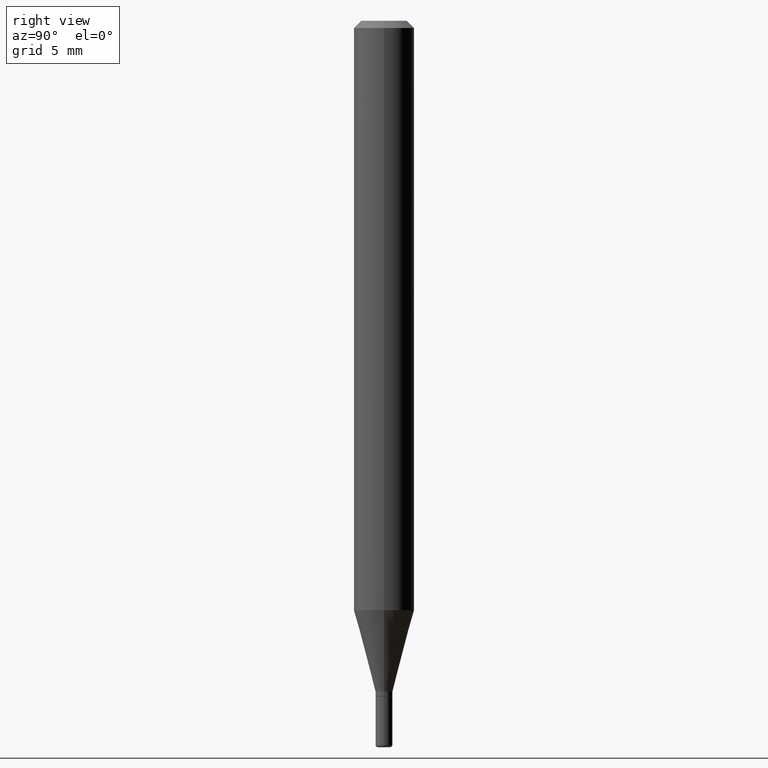
[diagram: clean part render]
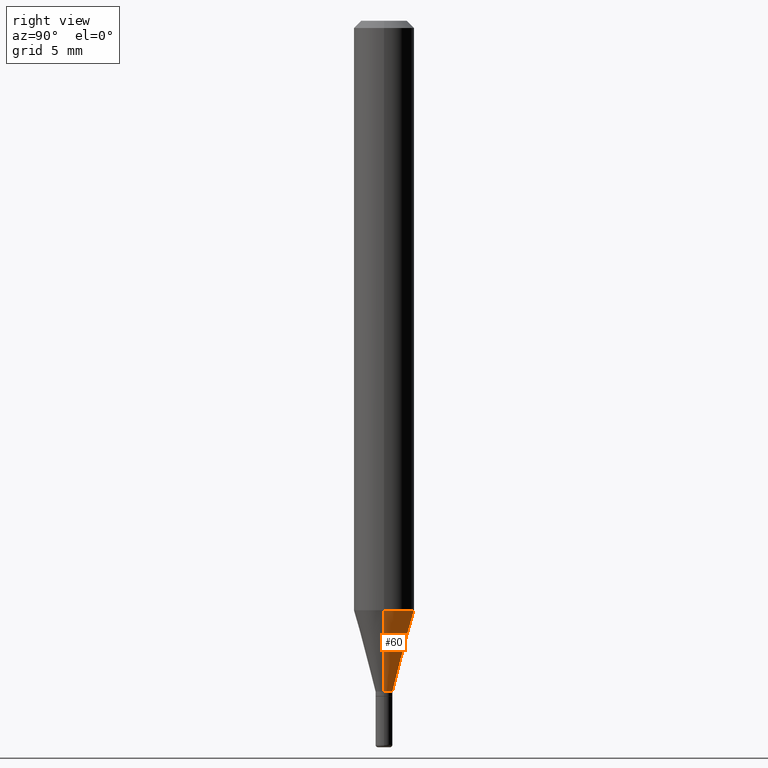
[diagram: same view with one face highlighted and labeled with its STEP entity id]
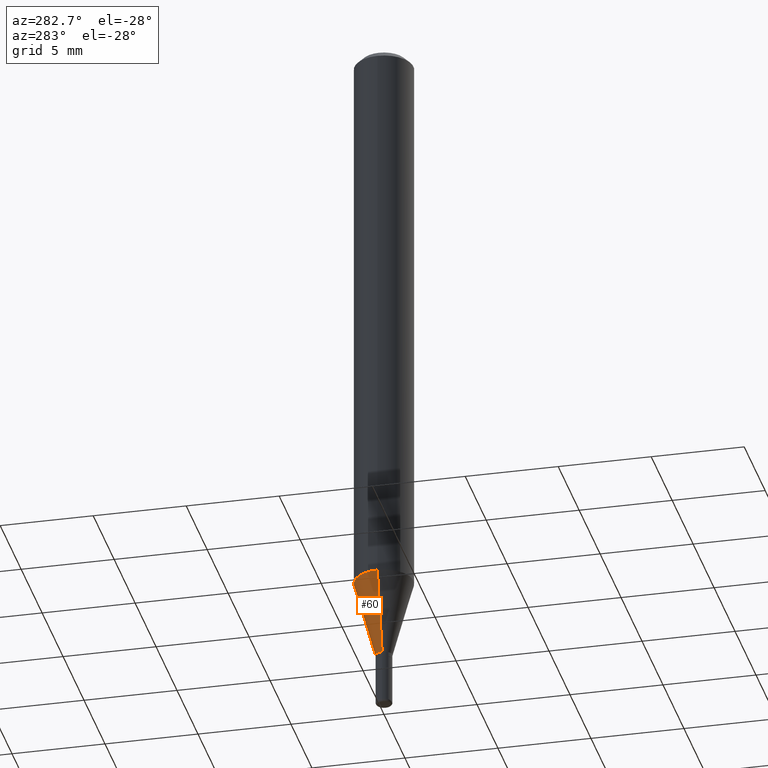
[diagram: same view with one face highlighted and labeled with its STEP entity id]
A machine part, right view. The second image highlights one B-rep face of the part: STEP entity #60.
A second angle (auxiliary view) of the same face is appended — the face is thin or edge-on in the first view.
In plain terms, the highlighted conical surface has half-angle 15 deg.
Its self-contained STEP definition (entity closure, byte-faithful):
#2 = ORIENTED_EDGE ( 'NONE', *, *, #498, .F. ) ;
#11 = CARTESIAN_POINT ( 'NONE',  ( -0.06250000000000000000, -3.805245085686841620E-15, -1.217057713659401186 ) ) ;
#14 = ORIENTED_EDGE ( 'NONE', *, *, #476, .T. ) ;
#16 = LINE ( 'NONE', #119, #65 ) ;
#23 = CARTESIAN_POINT ( 'NONE',  ( -0.01750000000000008146, -4.258300880613290869E-15, -1.385000000000000453 ) ) ;
#24 = CONICAL_SURFACE ( 'NONE', #480, 0.01750000000000008146, 0.2617993877991494633 ) ;
#30 = EDGE_CURVE ( 'NONE', #57, #108, #174, .T. ) ;
#38 = ORIENTED_EDGE ( 'NONE', *, *, #30, .T. ) ;
#49 = LINE ( 'NONE', #489, #364 ) ;
#57 = VERTEX_POINT ( 'NONE', #497 ) ;
#59 = VERTEX_POINT ( 'NONE', #11 ) ;
#60 = ADVANCED_FACE ( 'NONE', ( #299 ), #24, .T. ) ;
#65 = VECTOR ( 'NONE', #210, 39.37007874015748854 ) ;
#92 = CARTESIAN_POINT ( 'NONE',  ( 3.386974296566414926E-29, -4.835701654297758156E-15, -1.385000000000000453 ) ) ;
#93 = DIRECTION ( 'NONE',  ( -2.445468806185136597E-29, 3.491481338843145583E-15, 1.000000000000000000 ) ) ;
#108 = VERTEX_POINT ( 'NONE', #23 ) ;
#112 = EDGE_CURVE ( 'NONE', #155, #59, #219, .T. ) ;
#119 = CARTESIAN_POINT ( 'NONE',  ( -0.01750000000000008146, -4.711356675539740119E-15, -1.385000000000000453 ) ) ;
#155 = VERTEX_POINT ( 'NONE', #183 ) ;
#174 = CIRCLE ( 'NONE', #353, 0.01750000000000008146 ) ;
#183 = CARTESIAN_POINT ( 'NONE',  ( 0.06250000000000000000, -4.685769462892295905E-15, -1.217057713659401186 ) ) ;
#210 = DIRECTION ( 'NONE',  ( -0.2588190451025207395, 5.211531920934546309E-15, 0.9659258262890682012 ) ) ;
#219 = CIRCLE ( 'NONE', #274, 0.06250000000000000000 ) ;
#222 = DIRECTION ( 'NONE',  ( -2.445468806185136597E-29, 3.491481338843145583E-15, 1.000000000000000000 ) ) ;
#226 = DIRECTION ( 'NONE',  ( 1.000000000000000000, -6.982962677686270655E-15, 0.000000000000000000 ) ) ;
#253 = DIRECTION ( 'NONE',  ( 1.000000000000000000, -6.982962677686272233E-15, 0.000000000000000000 ) ) ;
#264 = CARTESIAN_POINT ( 'NONE',  ( 2.976276674081067684E-29, -4.249334295536904236E-15, -1.217057713659401186 ) ) ;
#274 = AXIS2_PLACEMENT_3D ( 'NONE', #264, #222, #226 ) ;
#283 = EDGE_LOOP ( 'NONE', ( #38, #14, #361, #2 ) ) ;
#299 = FACE_OUTER_BOUND ( 'NONE', #283, .T. ) ;
#302 = DIRECTION ( 'NONE',  ( -2.445468806185136597E-29, 3.491481338843145583E-15, 1.000000000000000000 ) ) ;
#353 = AXIS2_PLACEMENT_3D ( 'NONE', #92, #302, #253 ) ;
#361 = ORIENTED_EDGE ( 'NONE', *, *, #112, .F. ) ;
#364 = VECTOR ( 'NONE', #449, 39.37007874015748854 ) ;
#384 = DIRECTION ( 'NONE',  ( 1.000000000000000000, -6.982962677686272233E-15, 0.000000000000000000 ) ) ;
#449 = DIRECTION ( 'NONE',  ( 0.2588190451025207395, 1.565188264969626109E-15, 0.9659258262890682012 ) ) ;
#458 = CARTESIAN_POINT ( 'NONE',  ( 3.386974296566414926E-29, -4.835701654297758156E-15, -1.385000000000000453 ) ) ;
#476 = EDGE_CURVE ( 'NONE', #108, #59, #16, .T. ) ;
#480 = AXIS2_PLACEMENT_3D ( 'NONE', #458, #93, #384 ) ;
#489 = CARTESIAN_POINT ( 'NONE',  ( 0.01750000000000008146, -4.957903501157268139E-15, -1.385000000000000453 ) ) ;
#497 = CARTESIAN_POINT ( 'NONE',  ( 0.01750000000000008146, -4.957903501157268139E-15, -1.385000000000000453 ) ) ;
#498 = EDGE_CURVE ( 'NONE', #57, #155, #49, .T. ) ;